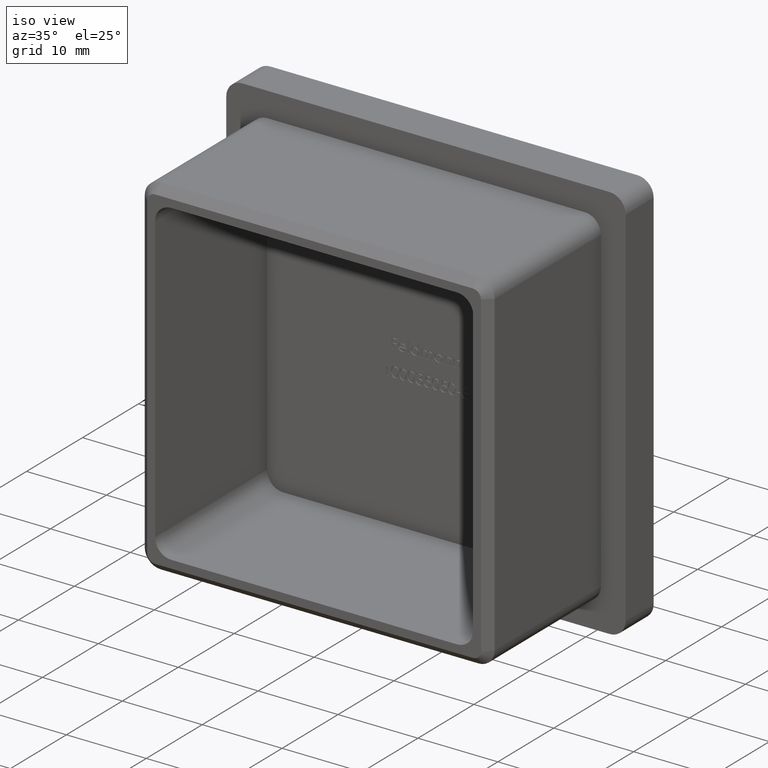
[diagram: clean part render]
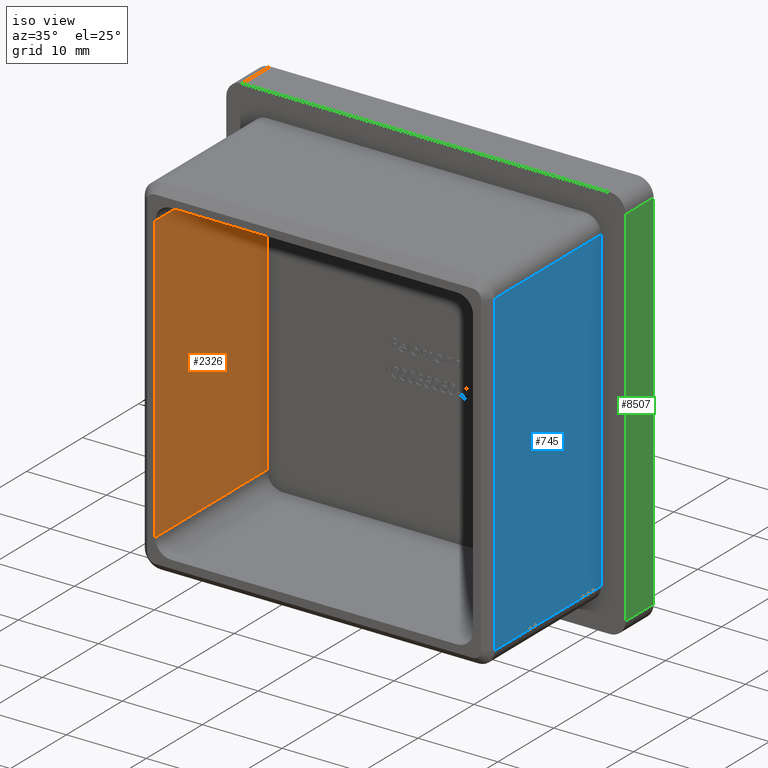
[diagram: same view with three faces highlighted in distinct colors, each labeled with its STEP entity id]
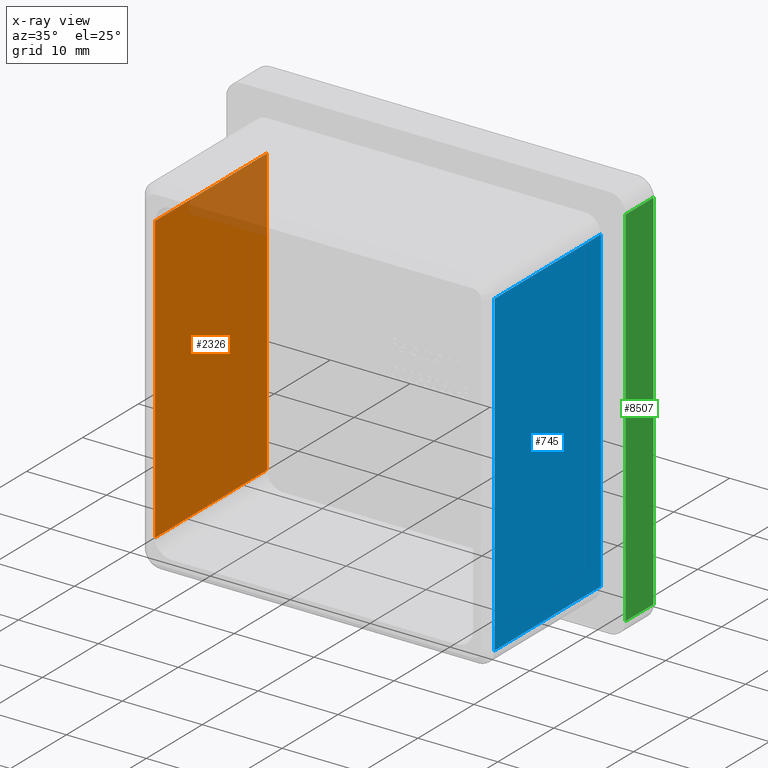
[diagram: x-ray of the same camera — body ghosted, the three highlighted faces saturated]
A machine part, iso view with three faces highlighted in distinct colors.
The next image is the same camera in x-ray (body ghosted, the three faces saturated) — at least one of them is partly hidden behind the body in this view.
Their STEP definitions:

[orange] entity #2326 — the highlighted planar face has unit normal (1, 0, 0).
#329 = DIRECTION ( 'NONE',  ( 1.000000000000000000, 0.0000000000000000000, 0.0000000000000000000 ) ) ;
#735 = CARTESIAN_POINT ( 'NONE',  ( -19.90000000000000900, 0.0000000000000000000, -17.90000000000001300 ) ) ;
#1429 = VECTOR ( 'NONE', #4508, 1000.000000000000000 ) ;
#2326 = ADVANCED_FACE ( 'NONE', ( #14222 ), #2751, .T. ) ;
#2441 = ORIENTED_EDGE ( 'NONE', *, *, #7457, .T. ) ;
#2679 = CARTESIAN_POINT ( 'NONE',  ( -19.90000000000000900, -20.00000000000000000, 17.90000000000000600 ) ) ;
#2751 = PLANE ( 'NONE',  #12526 ) ;
#3966 = EDGE_CURVE ( 'NONE', #13499, #5393, #6729, .T. ) ;
#4508 = DIRECTION ( 'NONE',  ( 0.0000000000000000000, 1.000000000000000000, -0.0000000000000000000 ) ) ;
#5258 = VECTOR ( 'NONE', #10493, 1000.000000000000000 ) ;
#5393 = VERTEX_POINT ( 'NONE', #735 ) ;
#5633 = ORIENTED_EDGE ( 'NONE', *, *, #12214, .F. ) ;
#6729 = LINE ( 'NONE', #12985, #1429 ) ;
#7457 = EDGE_CURVE ( 'NONE', #10696, #13499, #9542, .T. ) ;
#8426 = ORIENTED_EDGE ( 'NONE', *, *, #8733, .T. ) ;
#8733 = EDGE_CURVE ( 'NONE', #14266, #10696, #12548, .T. ) ;
#8894 = DIRECTION ( 'NONE',  ( 0.0000000000000000000, -0.0000000000000000000, -1.000000000000000000 ) ) ;
#9126 = CARTESIAN_POINT ( 'NONE',  ( -19.90000000000000900, 0.0000000000000000000, 17.90000000000000600 ) ) ;
#9220 = DIRECTION ( 'NONE',  ( 0.0000000000000000000, 0.0000000000000000000, -1.000000000000000000 ) ) ;
#9432 = DIRECTION ( 'NONE',  ( 0.0000000000000000000, -0.0000000000000000000, -1.000000000000000000 ) ) ;
#9542 = LINE ( 'NONE', #14422, #16427 ) ;
#9661 = VECTOR ( 'NONE', #8894, 1000.000000000000000 ) ;
#10493 = DIRECTION ( 'NONE',  ( -0.0000000000000000000, -1.000000000000000000, 0.0000000000000000000 ) ) ;
#10696 = VERTEX_POINT ( 'NONE', #15136 ) ;
#11743 = ORIENTED_EDGE ( 'NONE', *, *, #3966, .T. ) ;
#12048 = CARTESIAN_POINT ( 'NONE',  ( -19.90000000000000900, -20.00000000000000000, -17.90000000000001300 ) ) ;
#12214 = EDGE_CURVE ( 'NONE', #14266, #5393, #16152, .T. ) ;
#12526 = AXIS2_PLACEMENT_3D ( 'NONE', #14434, #329, #9220 ) ;
#12548 = LINE ( 'NONE', #2679, #5258 ) ;
#12731 = CARTESIAN_POINT ( 'NONE',  ( -19.90000000000000900, 0.0000000000000000000, 19.90000000000000900 ) ) ;
#12985 = CARTESIAN_POINT ( 'NONE',  ( -19.90000000000000900, 0.0000000000000000000, -17.90000000000001300 ) ) ;
#13499 = VERTEX_POINT ( 'NONE', #12048 ) ;
#14222 = FACE_OUTER_BOUND ( 'NONE', #14854, .T. ) ;
#14266 = VERTEX_POINT ( 'NONE', #9126 ) ;
#14422 = CARTESIAN_POINT ( 'NONE',  ( -19.90000000000000900, -20.00000000000000000, 19.90000000000000900 ) ) ;
#14434 = CARTESIAN_POINT ( 'NONE',  ( -19.90000000000000900, -20.00000000000000000, 19.90000000000000900 ) ) ;
#14854 = EDGE_LOOP ( 'NONE', ( #5633, #8426, #2441, #11743 ) ) ;
#15136 = CARTESIAN_POINT ( 'NONE',  ( -19.90000000000000900, -20.00000000000000000, 17.90000000000000600 ) ) ;
#16152 = LINE ( 'NONE', #12731, #9661 ) ;
#16427 = VECTOR ( 'NONE', #9432, 1000.000000000000000 ) ;

[blue] entity #745 — the highlighted planar face has unit normal (-1, 0, -0).
#53 = EDGE_LOOP ( 'NONE', ( #226, #14249, #10781, #9207 ) ) ;
#226 = ORIENTED_EDGE ( 'NONE', *, *, #11224, .T. ) ;
#458 = LINE ( 'NONE', #7895, #4544 ) ;
#745 = ADVANCED_FACE ( 'NONE', ( #9598 ), #3885, .F. ) ;
#941 = DIRECTION ( 'NONE',  ( -0.0000000000000000000, -0.0000000000000000000, 1.000000000000000000 ) ) ;
#1335 = LINE ( 'NONE', #15165, #2386 ) ;
#1916 = VERTEX_POINT ( 'NONE', #16720 ) ;
#2386 = VECTOR ( 'NONE', #4873, 1000.000000000000000 ) ;
#3398 = DIRECTION ( 'NONE',  ( 0.0000000000000000000, 1.000000000000000000, 0.0000000000000000000 ) ) ;
#3552 = VERTEX_POINT ( 'NONE', #13396 ) ;
#3814 = VECTOR ( 'NONE', #941, 1000.000000000000000 ) ;
#3885 = PLANE ( 'NONE',  #5343 ) ;
#3968 = CARTESIAN_POINT ( 'NONE',  ( 21.90000000000000600, 0.0000000000000000000, -19.90000000000001300 ) ) ;
#4544 = VECTOR ( 'NONE', #10491, 1000.000000000000000 ) ;
#4873 = DIRECTION ( 'NONE',  ( -0.0000000000000000000, -1.000000000000000000, -0.0000000000000000000 ) ) ;
#4902 = VERTEX_POINT ( 'NONE', #3968 ) ;
#5210 = DIRECTION ( 'NONE',  ( -1.000000000000000000, 0.0000000000000000000, -0.0000000000000000000 ) ) ;
#5343 = AXIS2_PLACEMENT_3D ( 'NONE', #12894, #5210, #10404 ) ;
#6858 = LINE ( 'NONE', #7375, #15371 ) ;
#7375 = CARTESIAN_POINT ( 'NONE',  ( 21.90000000000000600, -20.00000000000000000, -19.90000000000001300 ) ) ;
#7510 = VERTEX_POINT ( 'NONE', #8458 ) ;
#7895 = CARTESIAN_POINT ( 'NONE',  ( 21.90000000000000600, -18.99999999999998600, -19.90000000000001300 ) ) ;
#8458 = CARTESIAN_POINT ( 'NONE',  ( 21.90000000000000600, -18.99999999999998600, 19.90000000000000900 ) ) ;
#9207 = ORIENTED_EDGE ( 'NONE', *, *, #9328, .T. ) ;
#9328 = EDGE_CURVE ( 'NONE', #4902, #1916, #15575, .T. ) ;
#9426 = EDGE_CURVE ( 'NONE', #3552, #4902, #6858, .T. ) ;
#9598 = FACE_OUTER_BOUND ( 'NONE', #53, .T. ) ;
#10404 = DIRECTION ( 'NONE',  ( -0.0000000000000000000, 0.0000000000000000000, 1.000000000000000000 ) ) ;
#10491 = DIRECTION ( 'NONE',  ( 0.0000000000000000000, 0.0000000000000000000, -1.000000000000000000 ) ) ;
#10781 = ORIENTED_EDGE ( 'NONE', *, *, #9426, .T. ) ;
#11224 = EDGE_CURVE ( 'NONE', #1916, #7510, #1335, .T. ) ;
#12894 = CARTESIAN_POINT ( 'NONE',  ( 21.90000000000000600, -20.00000000000000000, 21.90000000000000600 ) ) ;
#13396 = CARTESIAN_POINT ( 'NONE',  ( 21.90000000000000600, -18.99999999999998600, -19.90000000000001300 ) ) ;
#13830 = EDGE_CURVE ( 'NONE', #7510, #3552, #458, .T. ) ;
#14249 = ORIENTED_EDGE ( 'NONE', *, *, #13830, .T. ) ;
#15165 = CARTESIAN_POINT ( 'NONE',  ( 21.90000000000000600, -20.00000000000000000, 19.90000000000000900 ) ) ;
#15371 = VECTOR ( 'NONE', #3398, 1000.000000000000000 ) ;
#15575 = LINE ( 'NONE', #16555, #3814 ) ;
#16555 = CARTESIAN_POINT ( 'NONE',  ( 21.90000000000000600, 0.0000000000000000000, 21.90000000000000600 ) ) ;
#16720 = CARTESIAN_POINT ( 'NONE',  ( 21.90000000000000600, 0.0000000000000000000, 19.90000000000000900 ) ) ;

[green] entity #8507 — the highlighted planar face has unit normal (-1, 0, 0).
#359 = FACE_OUTER_BOUND ( 'NONE', #682, .T. ) ;
#649 = VERTEX_POINT ( 'NONE', #873 ) ;
#682 = EDGE_LOOP ( 'NONE', ( #4310, #13075, #4719, #5191 ) ) ;
#873 = CARTESIAN_POINT ( 'NONE',  ( 24.99999999999999600, 5.000000000000000000, -23.00000000000000000 ) ) ;
#1387 = EDGE_CURVE ( 'NONE', #7985, #649, #16276, .T. ) ;
#1482 = CARTESIAN_POINT ( 'NONE',  ( 24.99999999999999600, 5.000000000000000000, -24.99999999999999600 ) ) ;
#2704 = VECTOR ( 'NONE', #16103, 1000.000000000000000 ) ;
#2923 = DIRECTION ( 'NONE',  ( 1.387778780781445700E-016, 0.0000000000000000000, 1.000000000000000000 ) ) ;
#3185 = EDGE_CURVE ( 'NONE', #9724, #8510, #8385, .T. ) ;
#4108 = LINE ( 'NONE', #5678, #2704 ) ;
#4208 = CARTESIAN_POINT ( 'NONE',  ( 24.99999999999999600, 5.000000000000000000, -23.00000000000000000 ) ) ;
#4292 = CARTESIAN_POINT ( 'NONE',  ( 24.99999999999999600, 0.0000000000000000000, -23.00000000000000000 ) ) ;
#4310 = ORIENTED_EDGE ( 'NONE', *, *, #4991, .T. ) ;
#4495 = LINE ( 'NONE', #13242, #7334 ) ;
#4719 = ORIENTED_EDGE ( 'NONE', *, *, #15087, .F. ) ;
#4991 = EDGE_CURVE ( 'NONE', #8510, #7985, #4495, .T. ) ;
#5191 = ORIENTED_EDGE ( 'NONE', *, *, #3185, .T. ) ;
#5678 = CARTESIAN_POINT ( 'NONE',  ( 24.99999999999999600, 5.000000000000000000, -24.99999999999999600 ) ) ;
#6690 = AXIS2_PLACEMENT_3D ( 'NONE', #1482, #11872, #2923 ) ;
#6777 = CARTESIAN_POINT ( 'NONE',  ( 25.00000000000000400, 0.0000000000000000000, 23.00000000000000400 ) ) ;
#6943 = CARTESIAN_POINT ( 'NONE',  ( 25.00000000000000400, 5.000000000000000000, 23.00000000000000400 ) ) ;
#7334 = VECTOR ( 'NONE', #14582, 1000.000000000000000 ) ;
#7985 = VERTEX_POINT ( 'NONE', #4292 ) ;
#8385 = LINE ( 'NONE', #6943, #16686 ) ;
#8507 = ADVANCED_FACE ( 'NONE', ( #359 ), #10668, .F. ) ;
#8510 = VERTEX_POINT ( 'NONE', #6777 ) ;
#9388 = VECTOR ( 'NONE', #15881, 1000.000000000000000 ) ;
#9513 = CARTESIAN_POINT ( 'NONE',  ( 25.00000000000000400, 5.000000000000000000, 23.00000000000000400 ) ) ;
#9724 = VERTEX_POINT ( 'NONE', #9513 ) ;
#10668 = PLANE ( 'NONE',  #6690 ) ;
#11872 = DIRECTION ( 'NONE',  ( -1.000000000000000000, 0.0000000000000000000, 1.387778780781445700E-016 ) ) ;
#13075 = ORIENTED_EDGE ( 'NONE', *, *, #1387, .T. ) ;
#13242 = CARTESIAN_POINT ( 'NONE',  ( 24.99999999999999600, 0.0000000000000000000, -24.99999999999999600 ) ) ;
#13440 = DIRECTION ( 'NONE',  ( 0.0000000000000000000, -1.000000000000000000, 0.0000000000000000000 ) ) ;
#14582 = DIRECTION ( 'NONE',  ( -1.387778780781445700E-016, -0.0000000000000000000, -1.000000000000000000 ) ) ;
#15087 = EDGE_CURVE ( 'NONE', #9724, #649, #4108, .T. ) ;
#15881 = DIRECTION ( 'NONE',  ( -0.0000000000000000000, 1.000000000000000000, -0.0000000000000000000 ) ) ;
#16103 = DIRECTION ( 'NONE',  ( -1.387778780781445700E-016, -0.0000000000000000000, -1.000000000000000000 ) ) ;
#16276 = LINE ( 'NONE', #4208, #9388 ) ;
#16686 = VECTOR ( 'NONE', #13440, 1000.000000000000000 ) ;